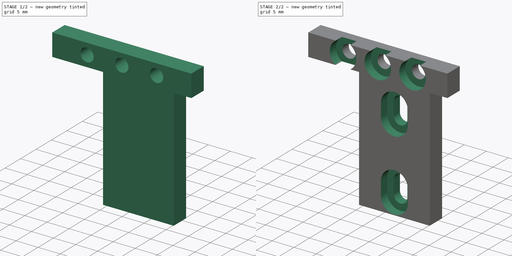
[diagram: build sequence overview — one tinted view per stage of 2, left to right]
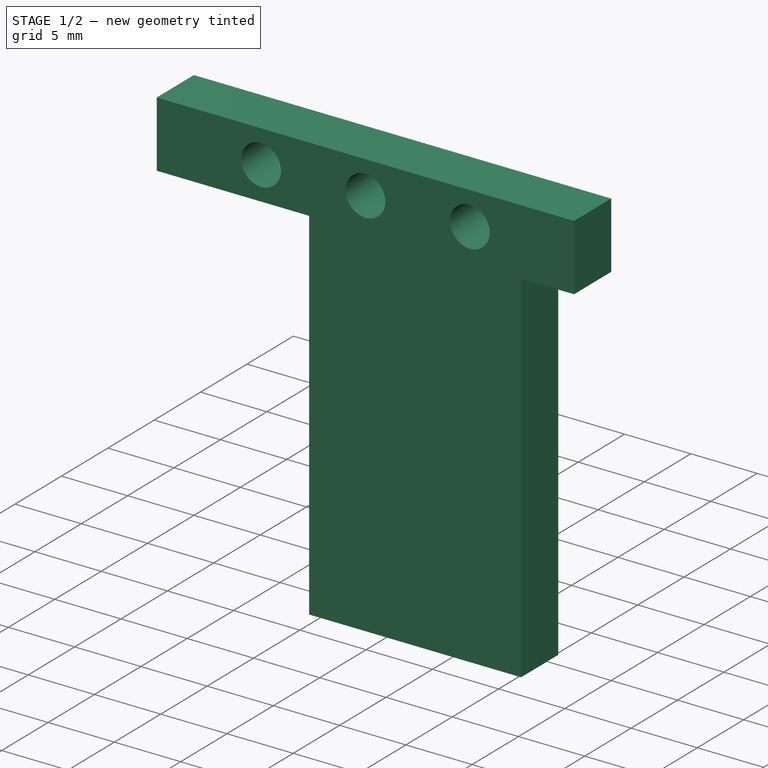
[diagram: stage 1 of 2 — iso view after this stage's code; geometry added in this stage tinted green]
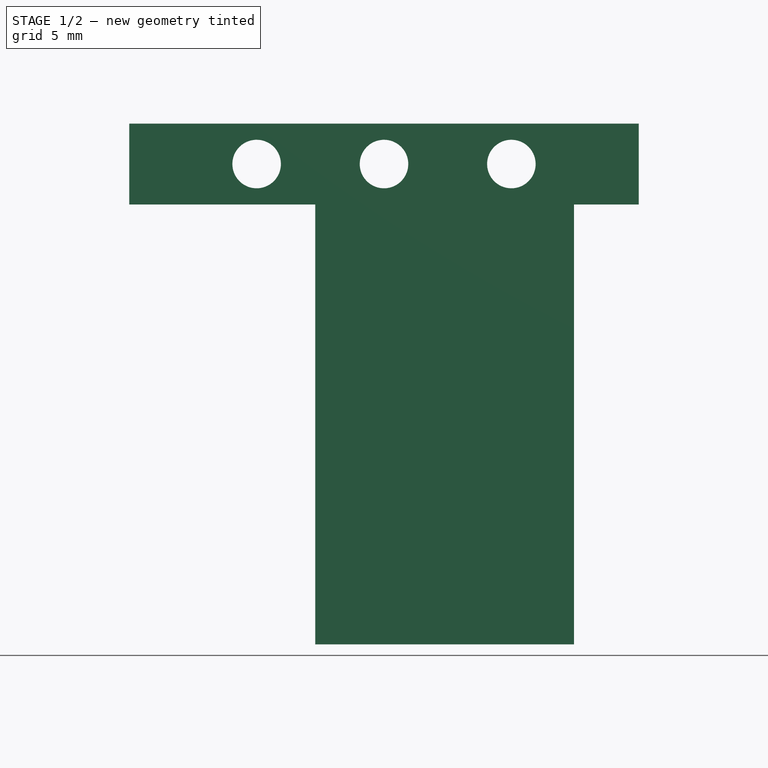
[diagram: stage 1 of 2 — front view after this stage's code; geometry added in this stage tinted green]
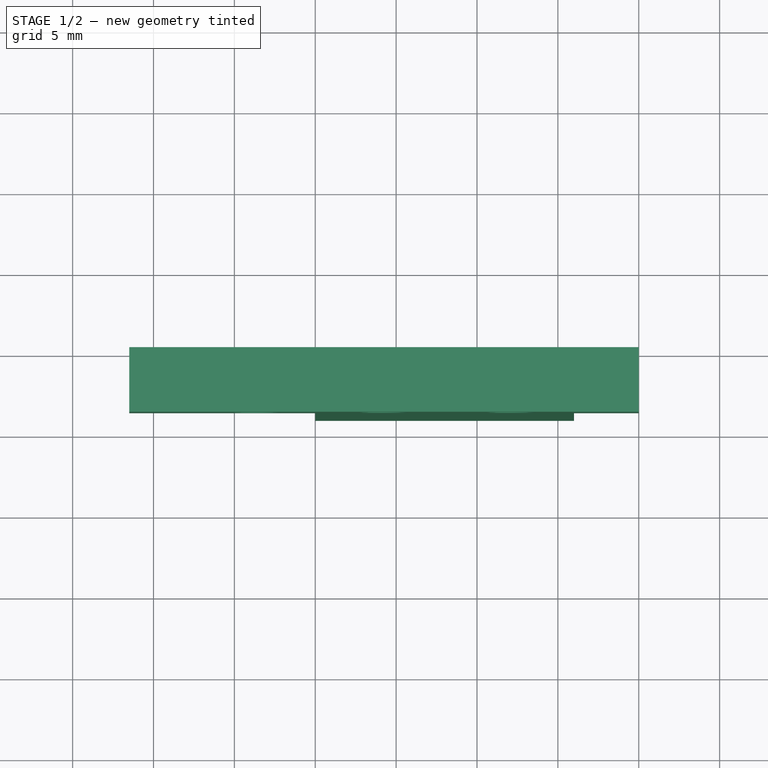
[diagram: stage 1 of 2 — top view after this stage's code; geometry added in this stage tinted green]
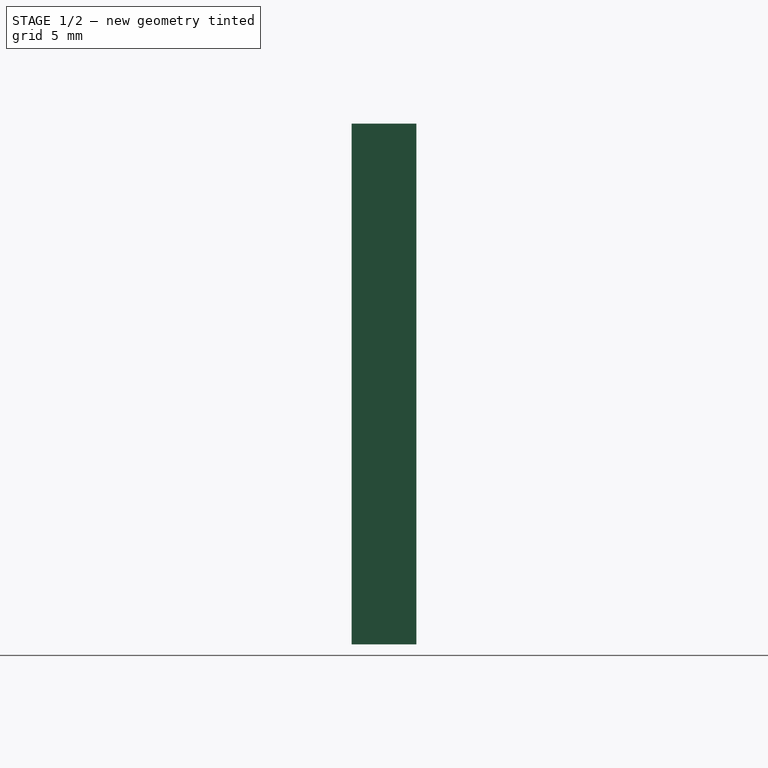
[diagram: stage 1 of 2 — right view after this stage's code; geometry added in this stage tinted green]
FCSTD DOCUMENT  (FreeCAD 0.21R33771 (Git))
Label: back-robot-plate-side-holder
License: All rights reserved
LicenseURL: https://en.wikipedia.org/wiki/All_rights_reserved
objects: Sketcher::SketchObject×4, PartDesign::Pocket×3, PartDesign::Pad×1, PartDesign::Body×1
note: 13 computed .brp shape members not serialized (recipe doc carries the construction recipe); baked Part::Feature solids carry a one-line shape summary decoded from their .brp

FEATURE [Sketcher::SketchObject] Sketch
  FullyConstrained = true
  MapMode = 5
  Placement = pos=(0,0,0) rot=(1,0,0;1.5708rad)
  Support = -> [XZ_Plane]
  sketch-geometry (8):
    g0: LineSegment StartX=16 StartY=0 StartZ=0 EndX=16 EndY=-27.2 EndZ=0
    g1: LineSegment StartX=16 StartY=-27.2 StartZ=0 EndX=0 EndY=-27.2 EndZ=0
    g2: LineSegment StartX=0 StartY=-27.2 StartZ=0 EndX=0 EndY=0 EndZ=0
    g3: LineSegment StartX=0 StartY=0 StartZ=0 EndX=-11.5 EndY=0 EndZ=0
    g4: LineSegment StartX=-11.5 StartY=0 StartZ=0 EndX=-11.5 EndY=5 EndZ=0
    g5: LineSegment StartX=-11.5 StartY=5 StartZ=0 EndX=20 EndY=5 EndZ=0
    g6: LineSegment StartX=20 StartY=5 StartZ=0 EndX=20 EndY=0 EndZ=0
    g7: LineSegment StartX=20 StartY=0 StartZ=0 EndX=16 EndY=0 EndZ=0
  constraints (23):
    c: PointOnObject(g0,g-1)
    c: Vertical(g0)
    c: Coincident(g0,g1)
    c: Horizontal(g1)
    c: Coincident(g1,g2)
    c: Vertical(g2)
    c: Coincident(g2,g3)
    c: PointOnObject(g3,g-1)
    c: Coincident(g3,g4)
    c: Vertical(g4)
    c: Coincident(g4,g5)
    c: Horizontal(g5)
    c: Coincident(g5,g6)
    c: PointOnObject(g6,g-1)
    c: Vertical(g6)
    c: Coincident(g6,g7)
    c: Coincident(g7,g0)
    c: DistanceX(g5,g5) = 31.5
    c: DistanceX(g1,g1) = 16
    c: DistanceY(g6,g6) = 5
    c: Coincident(g2,g-1)
    c: DistanceX(g7,g7) = 4
    c: DistanceY(g0,g0) = 27.2
FEATURE [PartDesign::Pad] Pad
  Direction = (0,-1,2e-16)
  Length = 4
  Length2 = 10
  Placement = pos=(0,0,0) rot=(1,0,0;1.5708rad)
  Profile = -> Sketch
  ReferenceAxis = -> Sketch [N_Axis]
  Type = 0
FEATURE [Sketcher::SketchObject] Sketch001
  ExternalGeometry = -> [Pad]
  FullyConstrained = true
  MapMode = 5
  Placement = pos=(0,-4,1.8e-15) rot=(1,0,0;1.5708rad)
  Support = -> [Pad]
  sketch-geometry (4):
    g0: Circle CenterX=-3.625 CenterY=2.5 CenterZ=0 NormalX=0 NormalY=0 NormalZ=1 AngleXU=0 Radius=1.5
    g1: Circle CenterX=4.25 CenterY=2.5 CenterZ=0 NormalX=0 NormalY=0 NormalZ=1 AngleXU=0 Radius=1.5
    g2: Circle CenterX=12.125 CenterY=2.5 CenterZ=0 NormalX=0 NormalY=0 NormalZ=1 AngleXU=0 Radius=1.5
    g3: LineSegment StartX=-11.5 StartY=2.5 StartZ=0 EndX=20 EndY=2.5 EndZ=0
  constraints (9):
    c: Equal(g0,g1)
    c: Equal(g1,g2)
    c: Diameter(g0) = 3
    c: PointOnObject(g3,g-4)
    c: Horizontal(g3)
    c: Symmetric(g-3,g-3,g3)
    c: Symmetric(g3,g3,g1)
    c: Symmetric(g3,g1,g0)
    c: Symmetric(g3,g1,g2)
FEATURE [PartDesign::Pocket] Pocket
  BaseFeature = -> Pad
  Direction = (0,1,-2e-16)
  Length = 5
  Length2 = 5
  Placement = pos=(0,0,0) rot=(1,0,0;1.5708rad)
  Profile = -> Sketch001
  ReferenceAxis = -> Sketch001 [N_Axis]
  Type = 1
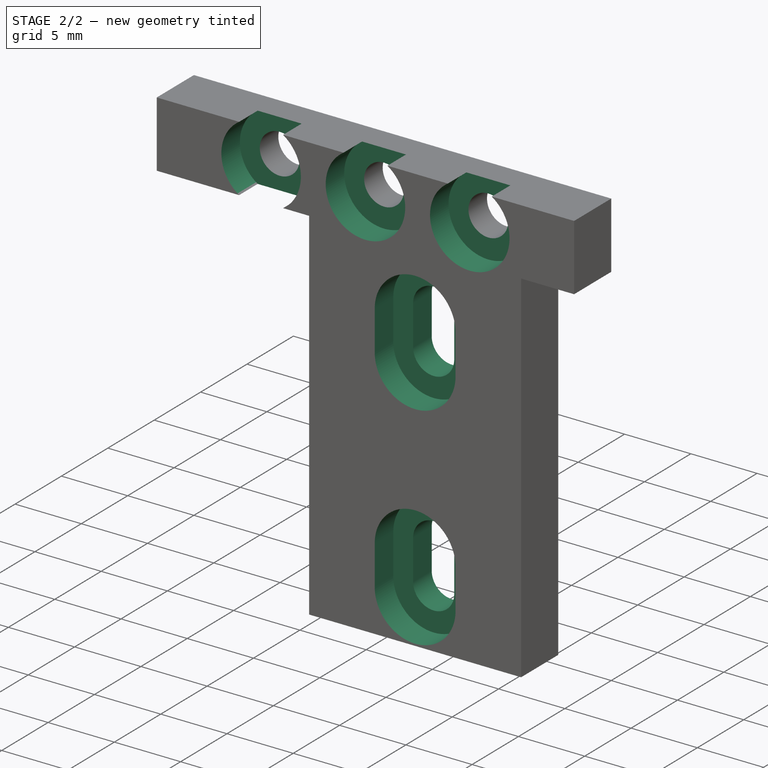
[diagram: stage 2 of 2 — iso view after this stage's code; geometry added in this stage tinted green]
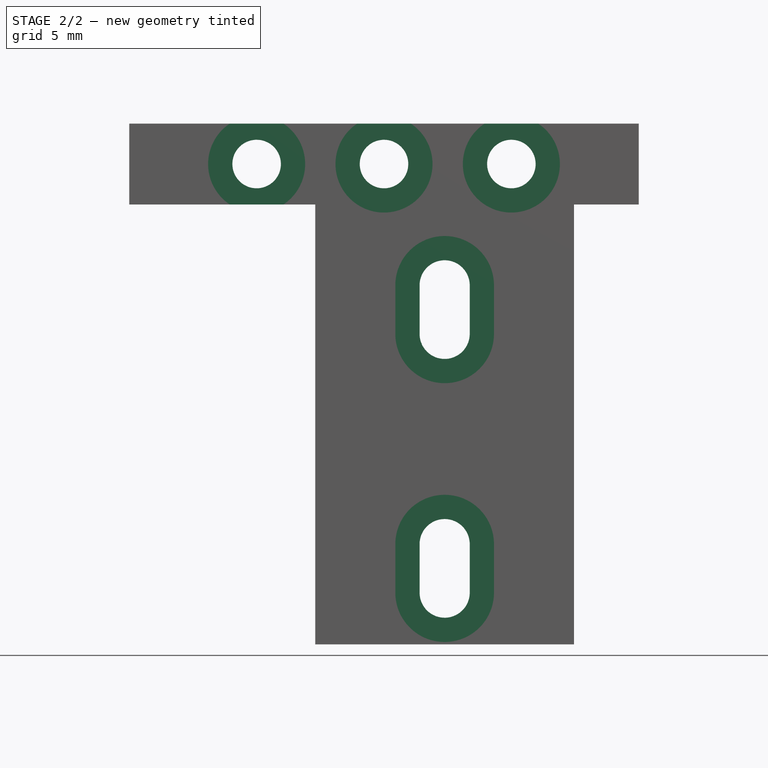
[diagram: stage 2 of 2 — front view after this stage's code; geometry added in this stage tinted green]
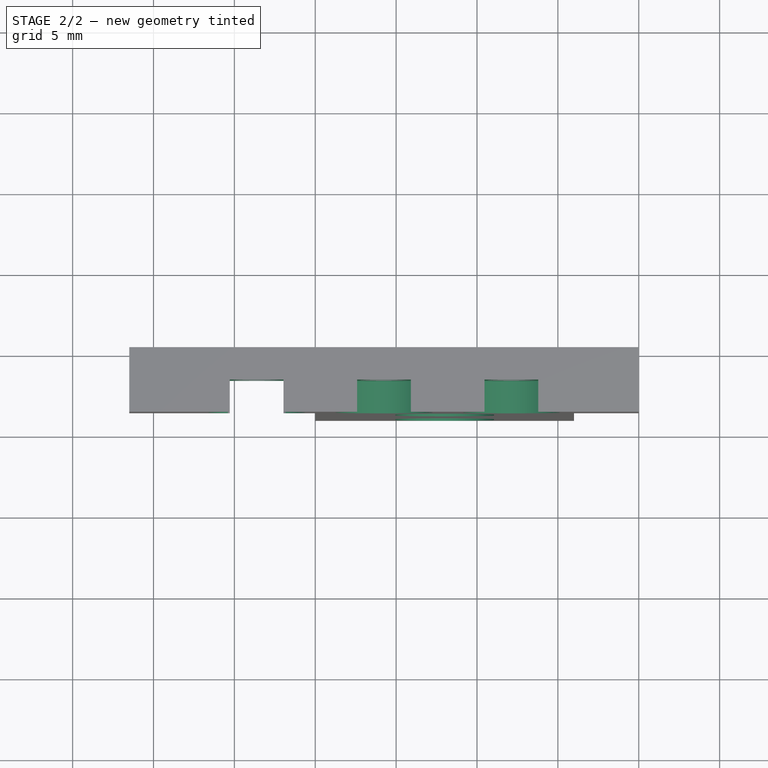
[diagram: stage 2 of 2 — top view after this stage's code; geometry added in this stage tinted green]
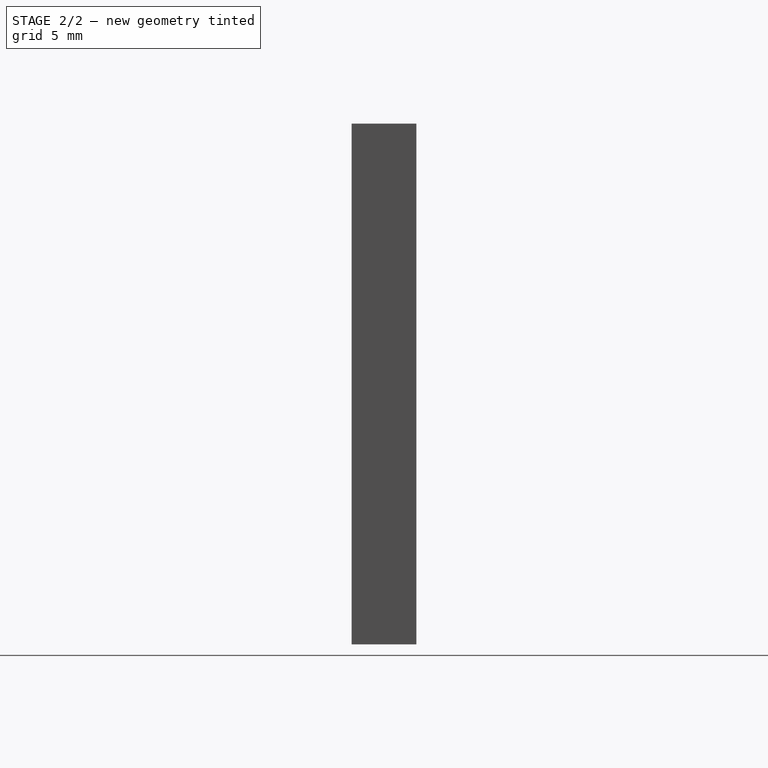
[diagram: stage 2 of 2 — right view after this stage's code; geometry added in this stage tinted green]
FEATURE [Sketcher::SketchObject] Sketch002
  ExternalGeometry = -> [Pocket]
  FullyConstrained = true
  MapMode = 5
  Placement = pos=(0,-4,1.8e-15) rot=(1,0,0;1.5708rad)
  Support = -> [Pocket]
  sketch-geometry (9):
    g0: ArcOfCircle CenterX=8 CenterY=-5 CenterZ=0 NormalX=0 NormalY=0 NormalZ=1 AngleXU=0 Radius=1.55 StartAngle=1e-16 EndAngle=3.14159
    g1: ArcOfCircle CenterX=8 CenterY=-8 CenterZ=0 NormalX=0 NormalY=0 NormalZ=1 AngleXU=0 Radius=1.55 StartAngle=3.14159 EndAngle=6.28319
    g2: LineSegment StartX=6.45 StartY=-5 StartZ=0 EndX=6.45 EndY=-8 EndZ=0
    g3: LineSegment StartX=9.55 StartY=-8 StartZ=0 EndX=9.55 EndY=-5 EndZ=0
    g4: ArcOfCircle CenterX=8 CenterY=-21 CenterZ=0 NormalX=0 NormalY=0 NormalZ=1 AngleXU=0 Radius=1.55 StartAngle=2e-16 EndAngle=3.14159
    g5: ArcOfCircle CenterX=8 CenterY=-24 CenterZ=0 NormalX=0 NormalY=0 NormalZ=1 AngleXU=0 Radius=1.55 StartAngle=3.14159 EndAngle=6.28319
    g6: LineSegment StartX=6.45 StartY=-21 StartZ=0 EndX=6.45 EndY=-24 EndZ=0
    g7: LineSegment StartX=9.55 StartY=-24 StartZ=0 EndX=9.55 EndY=-21 EndZ=0
    g8: LineSegment StartX=8 StartY=-27.2 StartZ=0 EndX=8 EndY=0 EndZ=0
  constraints (23):
    c: Tangent(g0,g2) = -1.5708
    c: Tangent(g2,g1) = -1.5708
    c: Tangent(g1,g3) = -1.5708
    c: Tangent(g3,g0) = -1.5708
    c: Equal(g0,g1)
    c: Tangent(g4,g6) = -1.5708
    c: Tangent(g6,g5) = -1.5708
    c: Tangent(g5,g7) = -1.5708
    c: Tangent(g7,g4) = -1.5708
    c: Equal(g4,g5)
    c: Vertical(g8)
    c: PointOnObject(g8,g-1)
    c: Symmetric(g-3,g-3,g8)
    c: PointOnObject(g5,g8)
    c: PointOnObject(g4,g8)
    c: PointOnObject(g1,g8)
    c: PointOnObject(g0,g8)
    c: DistanceX(g0,g0) = 3.1
    c: DistanceX(g4,g4) = 3.1
    c: DistanceY(g3,g3) = 3
    c: DistanceY(g7,g7) = 3
    c: DistanceY(g0,g-1) = 5
    c: DistanceY(g4,g-1) = 21
FEATURE [PartDesign::Pocket] Pocket001
  BaseFeature = -> Pocket
  Direction = (0,1,-2e-16)
  Length = 5
  Length2 = 5
  Placement = pos=(0,0,0) rot=(1,0,0;1.5708rad)
  Profile = -> Sketch002
  ReferenceAxis = -> Sketch002 [N_Axis]
  Type = 1
FEATURE [Sketcher::SketchObject] Sketch003
  ExternalGeometry = -> [Pocket001]
  FullyConstrained = true
  MapMode = 5
  Placement = pos=(0,-4,1.8e-15) rot=(1,0,0;1.5708rad)
  Support = -> [Pocket001]
  sketch-geometry (17):
    g0: Circle CenterX=-3.625 CenterY=2.5 CenterZ=0 NormalX=0 NormalY=0 NormalZ=1 AngleXU=0 Radius=3
    g1: Circle CenterX=4.25 CenterY=2.5 CenterZ=0 NormalX=0 NormalY=0 NormalZ=1 AngleXU=0 Radius=3
    g2: Circle CenterX=12.125 CenterY=2.5 CenterZ=0 NormalX=0 NormalY=0 NormalZ=1 AngleXU=0 Radius=3
    g3: LineSegment StartX=-11.5 StartY=2.5 StartZ=0 EndX=20 EndY=2.5 EndZ=0
    g4: ArcOfCircle CenterX=8 CenterY=-5 CenterZ=0 NormalX=0 NormalY=0 NormalZ=1 AngleXU=0 Radius=3.05 StartAngle=0 EndAngle=3.14159
    g5: ArcOfCircle CenterX=8 CenterY=-8 CenterZ=0 NormalX=0 NormalY=0 NormalZ=1 AngleXU=0 Radius=3.05 StartAngle=3.14159 EndAngle=6.28319
    g6: LineSegment StartX=4.95 StartY=-5 StartZ=0 EndX=4.95 EndY=-8 EndZ=0
    g7: LineSegment StartX=11.05 StartY=-8 StartZ=0 EndX=11.05 EndY=-5 EndZ=0
    g8: ArcOfCircle CenterX=8 CenterY=-21 CenterZ=0 NormalX=0 NormalY=0 NormalZ=1 AngleXU=0 Radius=3.05 StartAngle=1.11e-14 EndAngle=3.14159
    g9: ArcOfCircle CenterX=8 CenterY=-24 CenterZ=0 NormalX=0 NormalY=0 NormalZ=1 AngleXU=0 Radius=3.05 StartAngle=3.14159 EndAngle=6.28319
    g10: LineSegment StartX=4.95 StartY=-21 StartZ=0 EndX=4.95 EndY=-24 EndZ=0
    g11: LineSegment StartX=11.05 StartY=-24 StartZ=0 EndX=11.05 EndY=-21 EndZ=0
    g12: LineSegment StartX=8 StartY=-27.2 StartZ=0 EndX=8 EndY=0 EndZ=0
    g13: LineSegment StartX=0 StartY=-5 StartZ=0 EndX=16 EndY=-5 EndZ=0
    g14: LineSegment StartX=0 StartY=-8 StartZ=0 EndX=16 EndY=-8 EndZ=0
    g15: LineSegment StartX=0 StartY=-21 StartZ=0 EndX=16 EndY=-21 EndZ=0
    g16: LineSegment StartX=0 StartY=-24 StartZ=0 EndX=16 EndY=-24 EndZ=0
  constraints (48):
    c: Equal(g0,g1)
    c: Equal(g1,g2)
    c: Diameter(g0) = 6
    c: PointOnObject(g3,g-3)
    c: Horizontal(g3)
    c: Symmetric(g-4,g-4,g3)
    c: Symmetric(g3,g3,g1)
    c: Symmetric(g3,g1,g0)
    c: Symmetric(g3,g1,g2)
    c: Tangent(g4,g6) = -1.5708
    c: Tangent(g6,g5) = -1.5708
    c: Tangent(g5,g7) = -1.5708
    c: Tangent(g7,g4) = -1.5708
    c: Equal(g4,g5)
    c: Tangent(g8,g10) = -1.5708
    c: Tangent(g10,g9) = -1.5708
    c: Tangent(g9,g11) = -1.5708
    c: Tangent(g11,g8) = -1.5708
    c: Equal(g8,g9)
    c: PointOnObject(g12,g-1)
    c: Vertical(g12)
    c: Symmetric(g-5,g-5,g12)
    c: PointOnObject(g5,g12)
    c: PointOnObject(g4,g12)
    c: PointOnObject(g8,g12)
    c: PointOnObject(g9,g12)
    c: PointOnObject(g13,g-2)
    c: PointOnObject(g13,g-8)
    c: Horizontal(g13)
    c: PointOnObject(g-6,g13)
    c: PointOnObject(g4,g13)
    c: PointOnObject(g14,g-2)
    c: PointOnObject(g14,g-8)
    c: Horizontal(g14)
    c: PointOnObject(g-7,g14)
    c: PointOnObject(g5,g14)
    c: DistanceX(g-6,g4) = 1.5
    c: PointOnObject(g15,g-2)
    c: PointOnObject(g15,g-8)
    c: Horizontal(g15)
    c: PointOnObject(g16,g-2)
    c: PointOnObject(g16,g-8)
    c: Horizontal(g16)
    c: PointOnObject(g-10,g16)
    c: PointOnObject(g-9,g15)
    c: PointOnObject(g8,g15)
    c: PointOnObject(g9,g16)
    c: DistanceX(g-9,g8) = 1.5
FEATURE [PartDesign::Pocket] Pocket002
  BaseFeature = -> Pocket001
  Direction = (0,1,-4e-16)
  Length = 2
  Length2 = 5
  Placement = pos=(0,0,0) rot=(1,0,0;1.5708rad)
  Profile = -> Sketch003
  ReferenceAxis = -> Sketch003 [N_Axis]
  Type = 0
FEATURE [PartDesign::Body] Body
  Group = -> [Sketch,Pad,Sketch001,Pocket,Sketch002,Pocket001,Sketch003,Pocket002]
  Origin = -> Origin
  Tip = -> Pocket002
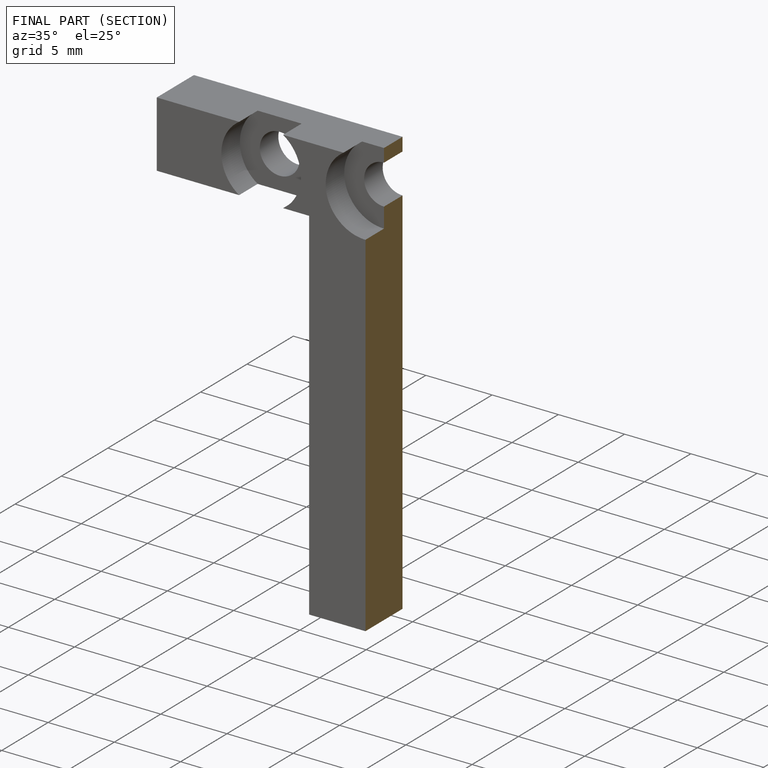
[diagram: finished part — half-section view (interior)]
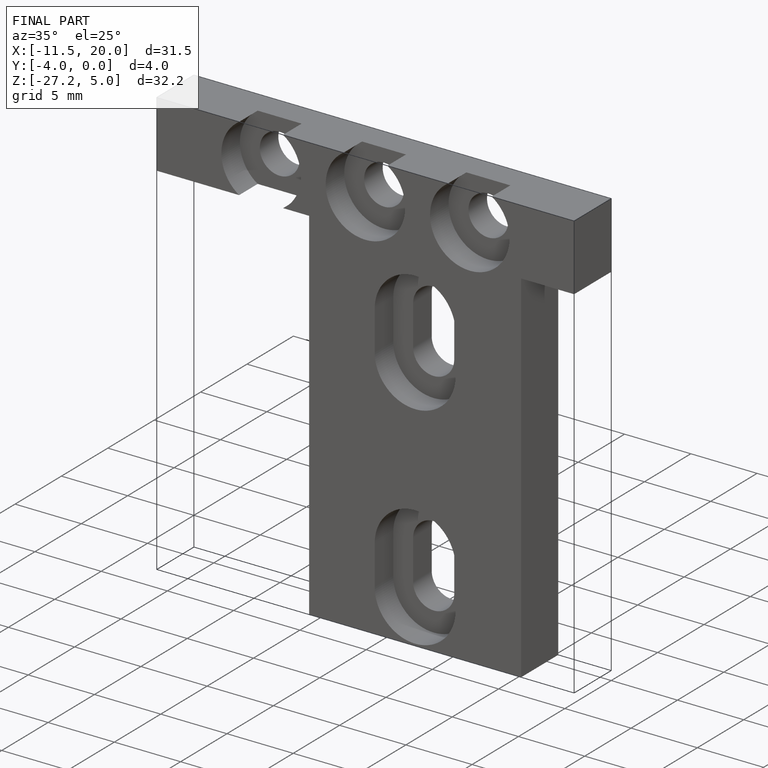
[diagram: finished part — iso view with bounding-box wireframe]
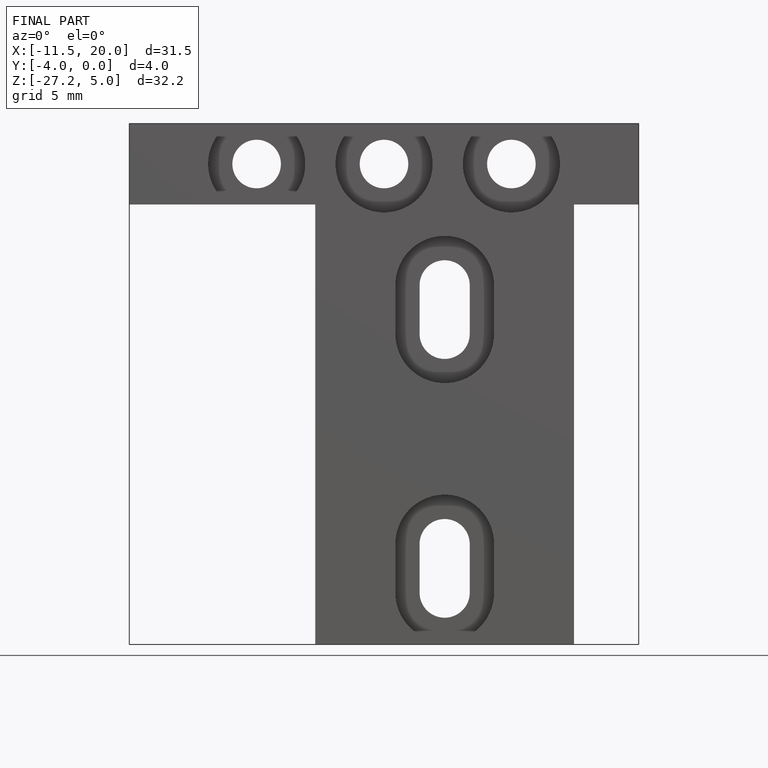
[diagram: finished part — front view with bounding-box wireframe]
